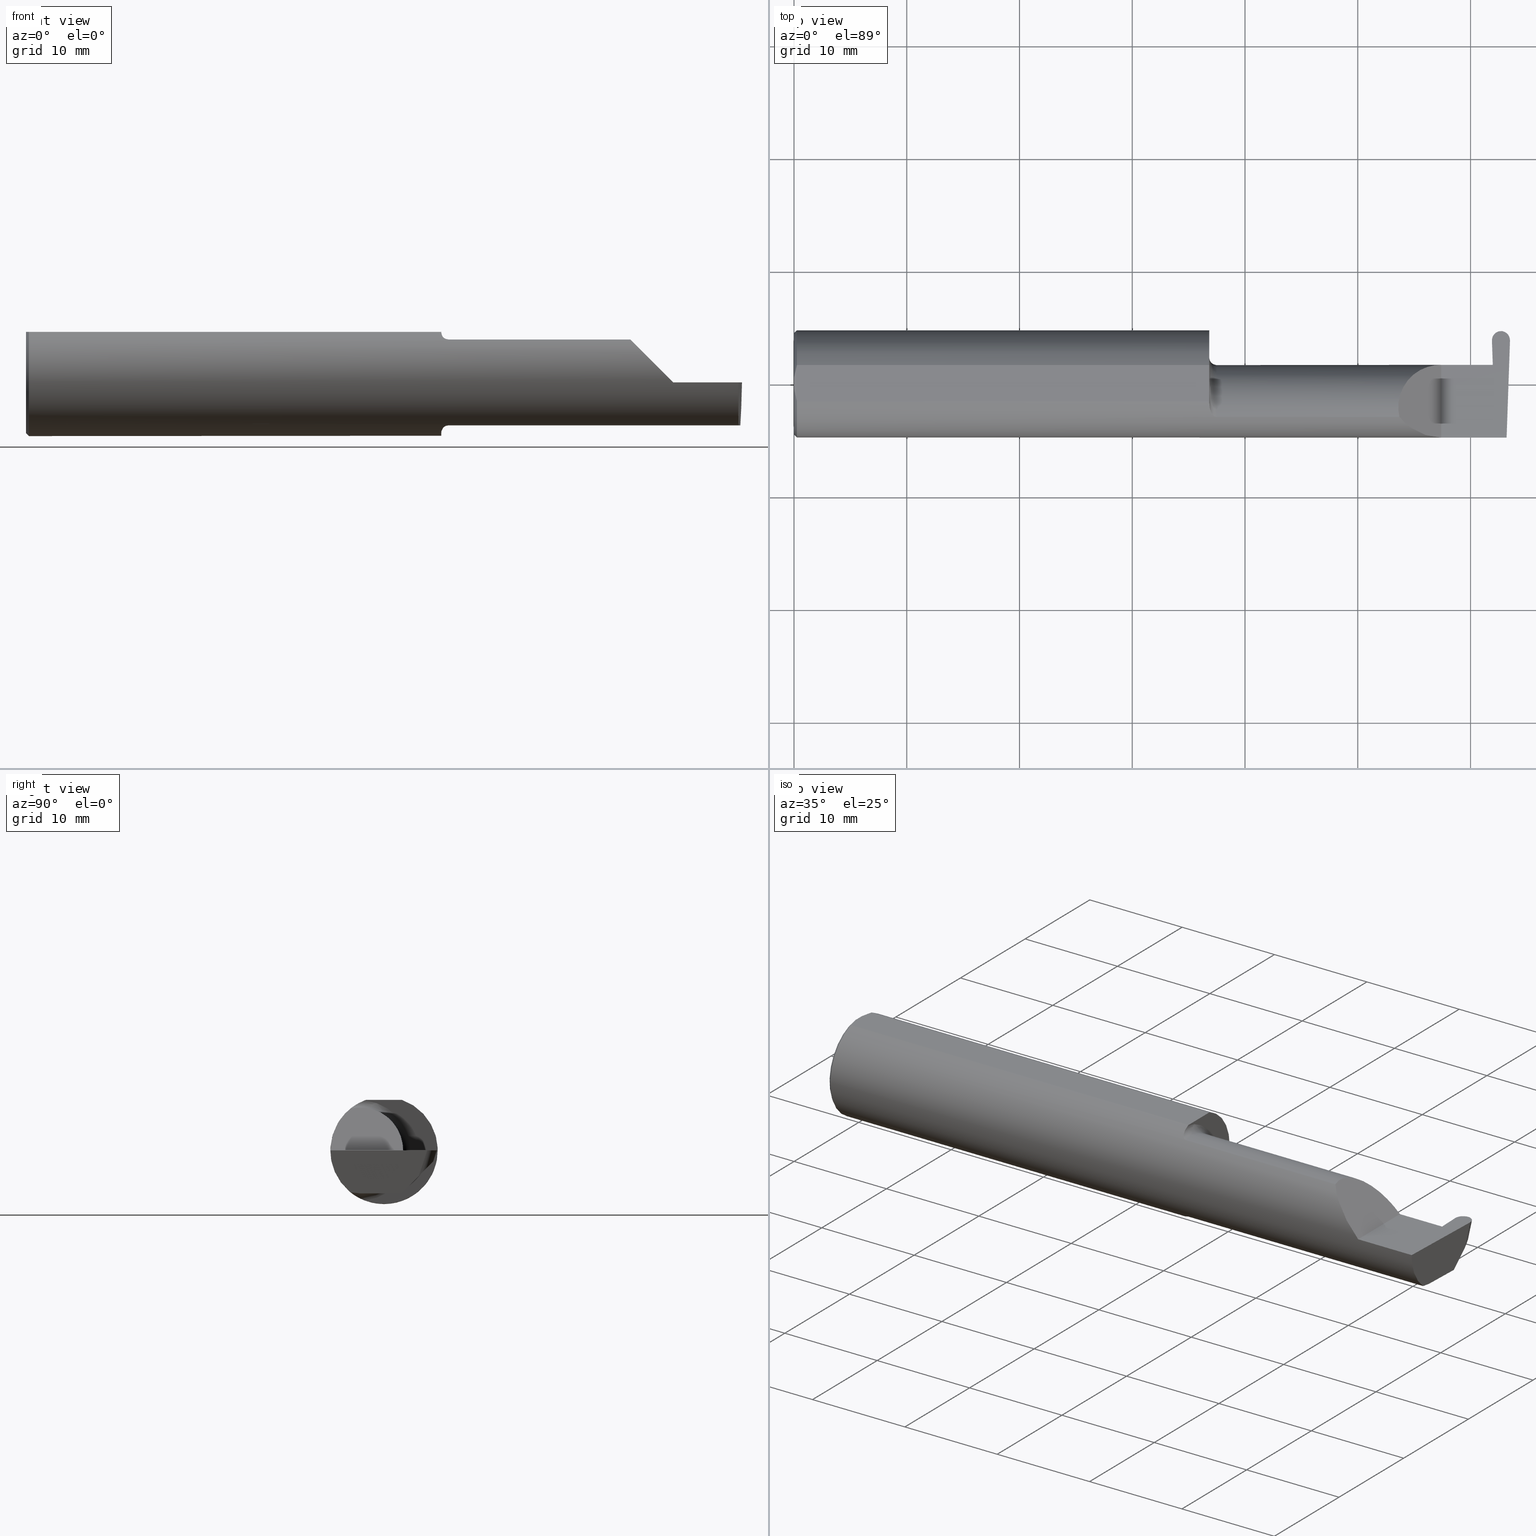
[diagram: canonical four-view strip — front | top / right | iso, engineering-drawing reading convention]
A machine part, canonical four-view strip (front | top / right | iso — engineering-drawing reading convention). The complete STEP part file that produces these views, byte-faithful:
ISO-10303-21;
HEADER;
FILE_DESCRIPTION (( 'STEP AP203' ),
    '1' );
FILE_NAME ('222146-GFR062-16.STEP',
    '2024-06-26T19:08:13',
    ( '' ),
    ( '' ),
    'SwSTEP 2.0',
    'SolidWorks 2024',
    '' );
FILE_SCHEMA (( 'CONFIG_CONTROL_DESIGN' ));
ENDSEC;

DATA;
#1 = EDGE_CURVE ( 'NONE', #405, #377, #662, .T. ) ;
#2 = PLANE ( 'NONE',  #205 ) ;
#3 = CARTESIAN_POINT ( 'NONE',  ( 2.436880131316879083, 0.1519786885938757270, 0.000000000000000000 ) ) ;
#4 = APPROVAL_DATE_TIME ( #260, #464 ) ;
#5 = AXIS2_PLACEMENT_3D ( 'NONE', #609, #555, #159 ) ;
#6 = DIRECTION ( 'NONE',  ( 0.000000000000000000, 0.000000000000000000, -1.000000000000000000 ) ) ;
#7 = DIRECTION ( 'NONE',  ( 0.9998367324388628408, 0.0003153570480505333835, 0.01806679318280454000 ) ) ;
#8 = DATE_AND_TIME ( #333, #388 ) ;
#9 = CARTESIAN_POINT ( 'NONE',  ( 1.450000000000000178, 0.1873499999999997667, 0.1763499999999999235 ) ) ;
#10 = ORIENTED_EDGE ( 'NONE', *, *, #1, .F. ) ;
#11 = LINE ( 'NONE', #439, #113 ) ;
#12 = CIRCLE ( 'NONE', #239, 0.1873499999999999888 ) ;
#13 = DIRECTION ( 'NONE',  ( -0.03701744261649762141, 0.7066221440565398915, 0.7066221440565479961 ) ) ;
#14 = PRODUCT_RELATED_PRODUCT_CATEGORY ( 'detail', '', ( #610 ) ) ;
#15 = CARTESIAN_POINT ( 'NONE',  ( 2.439954497345508511, 0.06655862405284596051, -0.005234924505382013322 ) ) ;
#16 = CARTESIAN_POINT ( 'NONE',  ( 1.450358271039144054, -0.07873626113568082951, -0.1700887912276896341 ) ) ;
#17 = ORIENTED_EDGE ( 'NONE', *, *, #474, .F. ) ;
#18 = DATE_AND_TIME ( #215, #24 ) ;
#19 = EDGE_CURVE ( 'NONE', #351, #484, #11, .T. ) ;
#20 = CARTESIAN_POINT ( 'NONE',  ( 2.436927982915767288, 0.1506083980881225137, 0.000000000000000000 ) ) ;
#21 = EDGE_CURVE ( 'NONE', #432, #138, #550, .T. ) ;
#22 = CYLINDRICAL_SURFACE ( 'NONE', #169, 0.1873499999999999888 ) ;
#23 = ORIENTED_EDGE ( 'NONE', *, *, #69, .T. ) ;
#24 = LOCAL_TIME ( 12, 8, 13.00000000000000000, #271 ) ;
#25 = CIRCLE ( 'NONE', #368, 0.1749999999999999889 ) ;
#26 = DIRECTION ( 'NONE',  ( -1.000000000000000000, -5.190412334829046880E-17, -0.000000000000000000 ) ) ;
#27 = VERTEX_POINT ( 'NONE', #104 ) ;
#28 = CARTESIAN_POINT ( 'NONE',  ( 2.437968007029192030, 0.1506577441815558915, -0.05964530736159392305 ) ) ;
#29 = FACE_OUTER_BOUND ( 'NONE', #256, .T. ) ;
#30 = ORIENTED_EDGE ( 'NONE', *, *, #448, .F. ) ;
#31 = CARTESIAN_POINT ( 'NONE',  ( 2.436927982915767288, 0.1506083980881225137, 0.000000000000000000 ) ) ;
#32 =( BOUNDED_CURVE ( )  B_SPLINE_CURVE ( 3, ( #288, #404, #246, #303 ),
 .UNSPECIFIED., .F., .T. ) 
 B_SPLINE_CURVE_WITH_KNOTS ( ( 4, 4 ),
 ( 0.8789888184544043526, 1.107026853503847663 ),
 .UNSPECIFIED. ) 
 CURVE ( )  GEOMETRIC_REPRESENTATION_ITEM ( )  RATIONAL_B_SPLINE_CURVE ( ( 1.000000000000000000, 0.9956712472009929815, 0.9956712472009929815, 1.000000000000000000 ) ) 
 REPRESENTATION_ITEM ( '' )  );
#33 = CARTESIAN_POINT ( 'NONE',  ( 2.733184360054361939, -0.08335000000000003517, -0.1500000000000000500 ) ) ;
#34 = ORIENTED_EDGE ( 'NONE', *, *, #60, .T. ) ;
#35 = DIRECTION ( 'NONE',  ( 5.190412334829046880E-17, -1.000000000000000000, 0.000000000000000000 ) ) ;
#36 = LINE ( 'NONE', #674, #688 ) ;
#37 = ORIENTED_EDGE ( 'NONE', *, *, #645, .T. ) ;
#38 = FACE_OUTER_BOUND ( 'NONE', #135, .T. ) ;
#39 = CARTESIAN_POINT ( 'NONE',  ( 1.469481469043492083, -0.1163560528186165510, 0.1468472430636323656 ) ) ;
#40 = VERTEX_POINT ( 'NONE', #167 ) ;
#41 = DIRECTION ( 'NONE',  ( 1.000000000000000000, 0.000000000000000000, 0.000000000000000000 ) ) ;
#42 = EDGE_CURVE ( 'NONE', #142, #27, #228, .T. ) ;
#43 = ORIENTED_EDGE ( 'NONE', *, *, #539, .T. ) ;
#44 = CARTESIAN_POINT ( 'NONE',  ( 1.472161949849308371, -0.1172600179964060768, 0.1461167706989261184 ) ) ;
#45 = ORIENTED_EDGE ( 'NONE', *, *, #381, .F. ) ;
#46 = AXIS2_PLACEMENT_3D ( 'NONE', #601, #597, #607 ) ;
#47 = SECURITY_CLASSIFICATION ( '', '', #325 ) ;
#48 = CARTESIAN_POINT ( 'NONE',  ( -0.001039370078739994957, 0.1846500000000000363, 0.000000000000000000 ) ) ;
#49 = ORIENTED_EDGE ( 'NONE', *, *, #372, .F. ) ;
#50 = PERSON_AND_ORGANIZATION ( #416, #402 ) ;
#51 = ADVANCED_FACE ( 'NONE', ( #604 ), #161, .F. ) ;
#52 = DIRECTION ( 'NONE',  ( 1.000000000000000000, 0.000000000000000000, -0.000000000000000000 ) ) ;
#53 = PLANE ( 'NONE',  #5 ) ;
#54 =( NAMED_UNIT ( * ) SI_UNIT ( $, .STERADIAN. ) SOLID_ANGLE_UNIT ( ) );
#55 = CARTESIAN_POINT ( 'NONE',  ( 0.005151108632379722968, -0.04888864921576022843, 0.1763499999999999235 ) ) ;
#56 = CARTESIAN_POINT ( 'NONE',  ( 1.474999999999999867, -0.1172600179964005812, -0.1461167706989303650 ) ) ;
#57 = APPROVAL_PERSON_ORGANIZATION ( #392, #544, #669 ) ;
#58 = ORIENTED_EDGE ( 'NONE', *, *, #703, .T. ) ;
#59 = PLANE ( 'NONE',  #468 ) ;
#60 = EDGE_CURVE ( 'NONE', #432, #79, #393, .T. ) ;
#61 = DIRECTION ( 'NONE',  ( 0.01806679408117650709, 0.000000000000000000, -0.9998367821557817559 ) ) ;
#62 = LINE ( 'NONE', #269, #584 ) ;
#63 = AXIS2_PLACEMENT_3D ( 'NONE', #235, #179, #326 ) ;
#64 = VECTOR ( 'NONE', #290, 39.37007874015747433 ) ;
#65 = DIRECTION ( 'NONE',  ( -0.7071067811865441310, 0.000000000000000000, -0.7071067811865510144 ) ) ;
#66 = PRODUCT_DEFINITION_SHAPE ( 'NONE', 'NONE',  #181 ) ;
#67 = ORIENTED_EDGE ( 'NONE', *, *, #1, .T. ) ;
#68 = CARTESIAN_POINT ( 'NONE',  ( 2.497385173767516786, 0.1218770478189729611, -0.08842600372417716570 ) ) ;
#69 = EDGE_CURVE ( 'NONE', #332, #187, #491, .T. ) ;
#70 = CARTESIAN_POINT ( 'NONE',  ( 2.442617676478078259, -0.08344164721461169720, -0.1500000000000000500 ) ) ;
#71 = EDGE_LOOP ( 'NONE', ( #515, #347, #162, #250 ) ) ;
#72 = DIRECTION ( 'NONE',  ( -0.02739170151059983765, -0.3089010440752013031, -0.9506996579664919178 ) ) ;
#73 = DIRECTION ( 'NONE',  ( 0.000000000000000000, 1.000000000000000000, 0.000000000000000000 ) ) ;
#74 = ORIENTED_EDGE ( 'NONE', *, *, #549, .F. ) ;
#75 = CARTESIAN_POINT ( 'NONE',  ( 2.468139380300150343, 0.1846500000000000363, 0.000000000000000000 ) ) ;
#76 = AXIS2_PLACEMENT_3D ( 'NONE', #486, #397, #6 ) ;
#77 = AXIS2_PLACEMENT_3D ( 'NONE', #480, #378, #375 ) ;
#78 = LINE ( 'NONE', #70, #443 ) ;
#79 = VERTEX_POINT ( 'NONE', #218 ) ;
#80 = CARTESIAN_POINT ( 'NONE',  ( 1.474999999999999867, -0.08335000000000006293, 0.000000000000000000 ) ) ;
#81 = EDGE_CURVE ( 'NONE', #79, #233, #444, .T. ) ;
#82 = CARTESIAN_POINT ( 'NONE',  ( 2.488131149766799943, -0.1873499999999999888, 0.000000000000000000 ) ) ;
#83 = ORIENTED_EDGE ( 'NONE', *, *, #42, .F. ) ;
#84 = DIRECTION ( 'NONE',  ( 0.7071067811865511255, 0.000000000000000000, -0.7071067811865439090 ) ) ;
#85 = CC_DESIGN_DATE_AND_TIME_ASSIGNMENT ( #538, #660, ( #181 ) ) ;
#86 = DIRECTION ( 'NONE',  ( -1.000000000000000000, -5.190412334829047496E-17, -0.000000000000000000 ) ) ;
#87 = ORIENTED_EDGE ( 'NONE', *, *, #21, .F. ) ;
#88 = CARTESIAN_POINT ( 'NONE',  ( 0.000000000000000000, 0.000000000000000000, 0.000000000000000000 ) ) ;
#89 = DIRECTION ( 'NONE',  ( -1.000000000000000000, -0.000000000000000000, -0.000000000000000000 ) ) ;
#90 = VECTOR ( 'NONE', #208, 39.37007874015748143 ) ;
#91 = VECTOR ( 'NONE', #455, 39.37007874015748854 ) ;
#92 = ORIENTED_EDGE ( 'NONE', *, *, #346, .T. ) ;
#93 = EDGE_CURVE ( 'NONE', #40, #289, #173, .T. ) ;
#94 = ADVANCED_FACE ( 'NONE', ( #172 ), #53, .T. ) ;
#95 = CARTESIAN_POINT ( 'NONE',  ( 2.113883229301068312, -0.1172600179964011224, 0.1461167706989300596 ) ) ;
#96 = ORIENTED_EDGE ( 'NONE', *, *, #243, .F. ) ;
#97 = CARTESIAN_POINT ( 'NONE',  ( 1.452945243422983035, -0.09312071749437417223, 0.1626553472577906556 ) ) ;
#98 = ORIENTED_EDGE ( 'NONE', *, *, #421, .T. ) ;
#99 = APPROVAL_ROLE ( '' ) ;
#100 = CARTESIAN_POINT ( 'NONE',  ( 0.000000000000000000, -0.06325108694718235836, 0.1763499999999999235 ) ) ;
#101 = ORIENTED_EDGE ( 'NONE', *, *, #529, .F. ) ;
#102 = AXIS2_PLACEMENT_3D ( 'NONE', #462, #540, #643 ) ;
#103 = PLANE ( 'NONE',  #425 ) ;
#104 = CARTESIAN_POINT ( 'NONE',  ( 2.439475726232482877, 0.1218770478189729889, -0.08842600372417713794 ) ) ;
#105 = CALENDAR_DATE ( 2024, 26, 6 ) ;
#106 = LINE ( 'NONE', #330, #64 ) ;
#107 = CARTESIAN_POINT ( 'NONE',  ( 2.202189699843947857, -0.1873500000000000165, 0.05781030015605082700 ) ) ;
#108 = VERTEX_POINT ( 'NONE', #285 ) ;
#109 = APPROVAL_STATUS ( 'not_yet_approved' ) ;
#110 = DIRECTION ( 'NONE',  ( 0.000000000000000000, -0.7071067811865434649, -0.7071067811865515695 ) ) ;
#111 = CARTESIAN_POINT ( 'NONE',  ( 1.465028532764138580, -0.1137241120808235861, -0.1488947809299403513 ) ) ;
#112 = EDGE_LOOP ( 'NONE', ( #487, #34, #628, #625, #213, #30 ) ) ;
#113 = VECTOR ( 'NONE', #335, 39.37007874015748143 ) ;
#114 =( GEOMETRIC_REPRESENTATION_CONTEXT ( 3 ) GLOBAL_UNCERTAINTY_ASSIGNED_CONTEXT ( ( #621 ) ) GLOBAL_UNIT_ASSIGNED_CONTEXT ( ( #203, #314, #54 ) ) REPRESENTATION_CONTEXT ( 'NONE', 'WORKASPACE' ) );
#115 = EDGE_CURVE ( 'NONE', #423, #401, #299, .T. ) ;
#116 = ORIENTED_EDGE ( 'NONE', *, *, #372, .T. ) ;
#117 = CARTESIAN_POINT ( 'NONE',  ( 0.000000000000000000, 0.000000000000000000, 0.000000000000000000 ) ) ;
#118 = LINE ( 'NONE', #33, #527 ) ;
#119 = ADVANCED_BREP_SHAPE_REPRESENTATION ( '222146-GFR062-16', ( #665, #77 ), #114 ) ;
#120 = ADVANCED_FACE ( 'NONE', ( #557 ), #59, .F. ) ;
#121 =( BOUNDED_CURVE ( )  B_SPLINE_CURVE ( 3, ( #274, #641, #488, #263 ),
 .UNSPECIFIED., .F., .F. ) 
 B_SPLINE_CURVE_WITH_KNOTS ( ( 4, 4 ),
 ( 3.159045946109733549, 4.694935687864693286 ),
 .UNSPECIFIED. ) 
 CURVE ( )  GEOMETRIC_REPRESENTATION_ITEM ( )  RATIONAL_B_SPLINE_CURVE ( ( 1.000000000000000000, 0.8128932002257790446, 0.8128932002257790446, 1.000000000000000000 ) ) 
 REPRESENTATION_ITEM ( '' )  );
#122 = CARTESIAN_POINT ( 'NONE',  ( -0.001039370078739994957, 0.1723030515431495657, -0.03799999999999999906 ) ) ;
#123 = CARTESIAN_POINT ( 'NONE',  ( 2.468430450000000054, 0.1722870660481372052, -0.03801598549501235269 ) ) ;
#124 = ORIENTED_EDGE ( 'NONE', *, *, #143, .F. ) ;
#125 = PLANE ( 'NONE',  #654 ) ;
#126 = CARTESIAN_POINT ( 'NONE',  ( 2.442617647571764028, -0.08334999999999999354, -0.1500000000000000500 ) ) ;
#127 = ORIENTED_EDGE ( 'NONE', *, *, #264, .T. ) ;
#128 = FACE_OUTER_BOUND ( 'NONE', #374, .T. ) ;
#129 = CARTESIAN_POINT ( 'NONE',  ( 0.000000000000000000, 0.01880691362238934988, 0.1763499999999999235 ) ) ;
#130 = EDGE_LOOP ( 'NONE', ( #58, #101, #457, #554 ) ) ;
#131 = CARTESIAN_POINT ( 'NONE',  ( 0.01000000000000013205, 0.000000000000000000, 0.000000000000000000 ) ) ;
#132 = AXIS2_PLACEMENT_3D ( 'NONE', #131, #192, #528 ) ;
#133 = APPLICATION_CONTEXT ( 'configuration controlled 3d designs of mechanical parts and assemblies' ) ;
#134 = PLANE ( 'NONE',  #434 ) ;
#135 = EDGE_LOOP ( 'NONE', ( #10, #316, #23, #608 ) ) ;
#136 = CARTESIAN_POINT ( 'NONE',  ( 2.439475726232482877, 0.1218770478189729889, -0.08842600372417713794 ) ) ;
#137 = DIRECTION ( 'NONE',  ( -0.000000000000000000, 1.000000000000000000, -0.000000000000000000 ) ) ;
#138 = VERTEX_POINT ( 'NONE', #495 ) ;
#139 = DIRECTION ( 'NONE',  ( -1.000000000000000000, -0.000000000000000000, -0.000000000000000000 ) ) ;
#140 = EDGE_CURVE ( 'NONE', #484, #454, #273, .T. ) ;
#141 = CARTESIAN_POINT ( 'NONE',  ( 1.456287624083520083, -0.1021858045380144436, 0.1571187174372875028 ) ) ;
#142 = VERTEX_POINT ( 'NONE', #548 ) ;
#143 = EDGE_CURVE ( 'NONE', #320, #194, #516, .T. ) ;
#144 = DIRECTION ( 'NONE',  ( 0.000000000000000000, 0.000000000000000000, -1.000000000000000000 ) ) ;
#145 = AXIS2_PLACEMENT_3D ( 'NONE', #517, #511, #523 ) ;
#146 = LINE ( 'NONE', #477, #356 ) ;
#147 = VECTOR ( 'NONE', #490, 39.37007874015748854 ) ;
#148 = VECTOR ( 'NONE', #302, 39.37007874015748143 ) ;
#149 = EDGE_LOOP ( 'NONE', ( #678, #475, #689 ) ) ;
#150 = CARTESIAN_POINT ( 'NONE',  ( 2.486891473655445939, 0.1715521506114310035, -0.03875090093171857514 ) ) ;
#151 = ORIENTED_EDGE ( 'NONE', *, *, #223, .T. ) ;
#152 = PERSON_AND_ORGANIZATION ( #416, #402 ) ;
#153 = CARTESIAN_POINT ( 'NONE',  ( 3.749399456654646757E-32, -0.1873499999999999610, 3.061616997868383634E-16 ) ) ;
#154 = ORIENTED_EDGE ( 'NONE', *, *, #623, .F. ) ;
#155 = PERSON_AND_ORGANIZATION_ROLE ( 'design_supplier' ) ;
#156 = EDGE_CURVE ( 'NONE', #283, #289, #576, .T. ) ;
#157 = DIRECTION ( 'NONE',  ( 0.000000000000000000, -0.9510565162951534202, 0.3090169943749482284 ) ) ;
#158 = VECTOR ( 'NONE', #13, 39.37007874015748143 ) ;
#159 = DIRECTION ( 'NONE',  ( -5.190412334829047496E-17, 1.000000000000000000, 0.000000000000000000 ) ) ;
#160 = CARTESIAN_POINT ( 'NONE',  ( 0.001595548104417008695, -0.03385300050298640367, 0.1763499999999999235 ) ) ;
#161 = PLANE ( 'NONE',  #627 ) ;
#162 = ORIENTED_EDGE ( 'NONE', *, *, #19, .T. ) ;
#163 = CARTESIAN_POINT ( 'NONE',  ( 2.468721519699850209, 0.1846500000000000363, 0.000000000000000000 ) ) ;
#164 = EDGE_CURVE ( 'NONE', #138, #194, #25, .T. ) ;
#165 = CARTESIAN_POINT ( 'NONE',  ( 1.472174967710399462, -0.1172600179964005812, -0.1461167706989303927 ) ) ;
#166 = EDGE_CURVE ( 'NONE', #199, #351, #78, .T. ) ;
#167 = CARTESIAN_POINT ( 'NONE',  ( 2.260000000000000231, -0.1873499999999999888, 2.939152317953647352E-17 ) ) ;
#168 = APPROVAL_PERSON_ORGANIZATION ( #698, #364, #367 ) ;
#169 = AXIS2_PLACEMENT_3D ( 'NONE', #676, #672, #236 ) ;
#170 = APPROVAL_PERSON_ORGANIZATION ( #152, #464, #99 ) ;
#171 = APPLICATION_CONTEXT ( 'configuration controlled 3d designs of mechanical parts and assemblies' ) ;
#172 = FACE_OUTER_BOUND ( 'NONE', #535, .T. ) ;
#173 =( BOUNDED_CURVE ( )  B_SPLINE_CURVE ( 3, ( #226, #107, #545, #337 ),
 .UNSPECIFIED., .F., .F. ) 
 B_SPLINE_CURVE_WITH_KNOTS ( ( 4, 4 ),
 ( 4.712388980384688786, 5.606916381293133966 ),
 .UNSPECIFIED. ) 
 CURVE ( )  GEOMETRIC_REPRESENTATION_ITEM ( )  RATIONAL_B_SPLINE_CURVE ( ( 1.000000000000000000, 0.9344226172588806500, 0.9344226172588806500, 1.000000000000000000 ) ) 
 REPRESENTATION_ITEM ( '' )  );
#174 = B_SPLINE_CURVE_WITH_KNOTS ( 'NONE', 3,
 ( #129, #177, #353, #311 ),
 .UNSPECIFIED., .F., .F.,
 ( 4, 4 ),
 ( 0.01188664626022242071, 0.01304646959483746725 ),
 .UNSPECIFIED. ) ;
#175 = CARTESIAN_POINT ( 'NONE',  ( 1.450000000000000178, -0.06851976604679066440, -0.1743704796142198643 ) ) ;
#176 = CARTESIAN_POINT ( 'NONE',  ( 0.000000000000000000, 0.000000000000000000, -0.1773499999999999521 ) ) ;
#177 = CARTESIAN_POINT ( 'NONE',  ( 0.001616639753276021213, 0.03405189565400638246, 0.1763499999999999235 ) ) ;
#178 = ORIENTED_EDGE ( 'NONE', *, *, #284, .F. ) ;
#179 = DIRECTION ( 'NONE',  ( 1.000000000000000000, 0.000000000000000000, 0.000000000000000000 ) ) ;
#180 = CONICAL_SURFACE ( 'NONE', #63, 0.1773499999999999521, 0.7853981633974431720 ) ;
#181 = PRODUCT_DEFINITION ( 'UNKNOWN', '', #494, #234 ) ;
#182 = CARTESIAN_POINT ( 'NONE',  ( 2.488131149766799943, -0.1873499999999999888, 0.000000000000000000 ) ) ;
#183 = ORIENTED_EDGE ( 'NONE', *, *, #243, .T. ) ;
#184 = DIRECTION ( 'NONE',  ( 0.000000000000000000, 0.9510565162951533091, -0.3090169943749480619 ) ) ;
#185 = CARTESIAN_POINT ( 'NONE',  ( 2.468430450000000054, 0.1813675557112593428, -0.01010232474915217019 ) ) ;
#186 = EDGE_CURVE ( 'NONE', #401, #262, #300, .T. ) ;
#187 = VERTEX_POINT ( 'NONE', #616 ) ;
#188 = CARTESIAN_POINT ( 'NONE',  ( 2.440100631637626805, 0.1947434164498489384, -0.01555963509330036791 ) ) ;
#189 = ADVANCED_FACE ( 'NONE', ( #456 ), #518, .F. ) ;
#190 = CARTESIAN_POINT ( 'NONE',  ( 1.452960551809340473, -0.09317341542745746774, -0.1626248379125196930 ) ) ;
#191 = VERTEX_POINT ( 'NONE', #123 ) ;
#192 = DIRECTION ( 'NONE',  ( 1.000000000000000000, 0.000000000000000000, 0.000000000000000000 ) ) ;
#193 = CARTESIAN_POINT ( 'NONE',  ( 1.474999999999999867, -0.1172600179964005812, 0.1461167706989303927 ) ) ;
#194 = VERTEX_POINT ( 'NONE', #175 ) ;
#195 = ADVANCED_FACE ( 'NONE', ( #29 ), #22, .T. ) ;
#196 =( BOUNDED_CURVE ( )  B_SPLINE_CURVE ( 3, ( #449, #521, #396, #182 ),
 .UNSPECIFIED., .F., .T. ) 
 B_SPLINE_CURVE_WITH_KNOTS ( ( 4, 4 ),
 ( 5.852427379562187504, 6.746954780470635349 ),
 .UNSPECIFIED. ) 
 CURVE ( )  GEOMETRIC_REPRESENTATION_ITEM ( )  RATIONAL_B_SPLINE_CURVE ( ( 1.000000000000000000, 0.9344226172588802060, 0.9344226172588802060, 1.000000000000000000 ) ) 
 REPRESENTATION_ITEM ( '' )  );
#197 = CARTESIAN_POINT ( 'NONE',  ( 2.430647848035137226, 0.06655862405286419592, -0.005234924505380427785 ) ) ;
#198 = EDGE_CURVE ( 'NONE', #701, #454, #32, .T. ) ;
#199 = VERTEX_POINT ( 'NONE', #126 ) ;
#200 = LINE ( 'NONE', #467, #148 ) ;
#201 = CARTESIAN_POINT ( 'NONE',  ( 2.468430450000000054, 0.1722870660481372052, -0.03801598549501235269 ) ) ;
#202 = ORIENTED_EDGE ( 'NONE', *, *, #21, .T. ) ;
#203 =( CONVERSION_BASED_UNIT ( 'INCH', #590 ) LENGTH_UNIT ( ) NAMED_UNIT ( #255 ) );
#204 = CARTESIAN_POINT ( 'NONE',  ( 1.450000000000000178, -0.06851976604679066440, 0.1743704796142198643 ) ) ;
#205 = AXIS2_PLACEMENT_3D ( 'NONE', #48, #157, #216 ) ;
#206 = AXIS2_PLACEMENT_3D ( 'NONE', #80, #566, #35 ) ;
#207 = EDGE_LOOP ( 'NONE', ( #659, #297, #83, #684, #67 ) ) ;
#208 = DIRECTION ( 'NONE',  ( 1.000000000000000000, 0.000000000000000000, 0.000000000000000000 ) ) ;
#209 = ORIENTED_EDGE ( 'NONE', *, *, #686, .T. ) ;
#210 = ADVANCED_FACE ( 'NONE', ( #513 ), #134, .F. ) ;
#211 = PERSON_AND_ORGANIZATION ( #416, #402 ) ;
#212 = DIRECTION ( 'NONE',  ( -0.03489949670249307273, -0.9993908270190959842, 0.000000000000000000 ) ) ;
#213 = ORIENTED_EDGE ( 'NONE', *, *, #186, .F. ) ;
#214 = CC_DESIGN_PERSON_AND_ORGANIZATION_ASSIGNMENT ( #321, #598, ( #181 ) ) ;
#215 = CALENDAR_DATE ( 2024, 26, 6 ) ;
#216 = DIRECTION ( 'NONE',  ( 0.000000000000000000, -0.3090169943749481729, -0.9510565162951533091 ) ) ;
#217 = VECTOR ( 'NONE', #86, 39.37007874015748143 ) ;
#218 = CARTESIAN_POINT ( 'NONE',  ( 1.450000000000000178, 0.06325108694718235836, 0.1763499999999999235 ) ) ;
#219 = CIRCLE ( 'NONE', #615, 0.1773499999999999521 ) ;
#220 = CALENDAR_DATE ( 2024, 26, 6 ) ;
#221 = CARTESIAN_POINT ( 'NONE',  ( 2.499980768683121024, 0.1519786885938757826, 0.000000000000000000 ) ) ;
#222 = DIRECTION ( 'NONE',  ( 0.000000000000000000, 0.000000000000000000, -1.000000000000000000 ) ) ;
#223 = EDGE_CURVE ( 'NONE', #194, #79, #12, .T. ) ;
#224 = ORIENTED_EDGE ( 'NONE', *, *, #558, .T. ) ;
#225 = APPROVAL_DATE_TIME ( #8, #544 ) ;
#226 = CARTESIAN_POINT ( 'NONE',  ( 2.260000000000000231, -0.1873499999999999888, 2.939152317953647352E-17 ) ) ;
#227 = VERTEX_POINT ( 'NONE', #82 ) ;
#228 = LINE ( 'NONE', #553, #158 ) ;
#229 = CIRCLE ( 'NONE', #594, 0.1873499999999999888 ) ;
#230 = CARTESIAN_POINT ( 'NONE',  ( 2.439859874782298377, 0.06664999999999998703, -9.645561665750239894E-21 ) ) ;
#231 = DIRECTION ( 'NONE',  ( 1.000000000000000000, 7.488084056613327882E-15, -0.000000000000000000 ) ) ;
#232 = CARTESIAN_POINT ( 'NONE',  ( 0.000000000000000000, 0.01880691362238934988, 0.1763499999999999235 ) ) ;
#233 = VERTEX_POINT ( 'NONE', #452 ) ;
#234 = DESIGN_CONTEXT ( 'detailed design', #171, 'design' ) ;
#235 = CARTESIAN_POINT ( 'NONE',  ( 0.000000000000000000, 0.000000000000000000, 0.000000000000000000 ) ) ;
#236 = DIRECTION ( 'NONE',  ( 0.000000000000000000, 0.000000000000000000, 1.000000000000000000 ) ) ;
#237 = EDGE_LOOP ( 'NONE', ( #267, #354, #370 ) ) ;
#238 = CARTESIAN_POINT ( 'NONE',  ( 2.449969426344554169, 0.1715521506114305317, -0.03875090093171905392 ) ) ;
#239 = AXIS2_PLACEMENT_3D ( 'NONE', #459, #683, #73 ) ;
#240 = VECTOR ( 'NONE', #633, 39.37007874015748143 ) ;
#241 = EDGE_CURVE ( 'NONE', #701, #227, #196, .T. ) ;
#242 = CARTESIAN_POINT ( 'NONE',  ( 2.500000000000000000, -0.2500000000000000555, 0.000000000000000000 ) ) ;
#243 = EDGE_CURVE ( 'NONE', #507, #227, #295, .T. ) ;
#244 = ORIENTED_EDGE ( 'NONE', *, *, #580, .T. ) ;
#245 = CARTESIAN_POINT ( 'NONE',  ( 2.436880131316879083, 0.1519786885938757270, 0.000000000000000000 ) ) ;
#246 = CARTESIAN_POINT ( 'NONE',  ( 2.488744025780163405, -0.09477667630339423055, -0.1499999999999999944 ) ) ;
#247 = ORIENTED_EDGE ( 'NONE', *, *, #338, .F. ) ;
#248 = LINE ( 'NONE', #360, #700 ) ;
#249 = CARTESIAN_POINT ( 'NONE',  ( 1.450353553376444893, -0.07868116735658675642, 0.1701139256562800572 ) ) ;
#250 = ORIENTED_EDGE ( 'NONE', *, *, #140, .T. ) ;
#251 = CARTESIAN_POINT ( 'NONE',  ( 2.468430450000000054, 0.1722870660481372052, -0.03801598549501235269 ) ) ;
#252 = CIRCLE ( 'NONE', #102, 0.1499999999999999944 ) ;
#253 = EDGE_CURVE ( 'NONE', #454, #199, #118, .T. ) ;
#254 = CARTESIAN_POINT ( 'NONE',  ( 2.468139380300150343, 0.1846500000000000363, 0.000000000000000000 ) ) ;
#255 = DIMENSIONAL_EXPONENTS ( 1.000000000000000000, 0.000000000000000000, 0.000000000000000000, 0.000000000000000000, 0.000000000000000000, 0.000000000000000000, 0.000000000000000000 ) ;
#256 = EDGE_LOOP ( 'NONE', ( #178, #673, #525, #639, #708, #359, #87, #304, #461, #43, #583, #562, #124 ) ) ;
#257 = DIRECTION ( 'NONE',  ( 7.486943585142156164E-15, -0.9998476951563912696, 0.01745240643728358451 ) ) ;
#258 = DIRECTION ( 'NONE',  ( 0.000000000000000000, 0.000000000000000000, -1.000000000000000000 ) ) ;
#259 = VERTEX_POINT ( 'NONE', #185 ) ;
#260 = DATE_AND_TIME ( #437, #296 ) ;
#261 = LINE ( 'NONE', #153, #614 ) ;
#262 = VERTEX_POINT ( 'NONE', #232 ) ;
#263 = CARTESIAN_POINT ( 'NONE',  ( 2.439954497345508511, 0.06655862405284596051, -0.005234924505382013322 ) ) ;
#264 = EDGE_CURVE ( 'NONE', #262, #233, #174, .T. ) ;
#265 = CARTESIAN_POINT ( 'NONE',  ( 2.113883229301068312, -0.1172600179964011224, 0.1461167706989300596 ) ) ;
#266 = CIRCLE ( 'NONE', #132, 0.1873499999999999888 ) ;
#267 = ORIENTED_EDGE ( 'NONE', *, *, #186, .T. ) ;
#268 = APPROVAL_STATUS ( 'not_yet_approved' ) ;
#269 = CARTESIAN_POINT ( 'NONE',  ( 2.439859874782298377, 0.06664999999999998703, 0.000000000000000000 ) ) ;
#270 = ORIENTED_EDGE ( 'NONE', *, *, #580, .F. ) ;
#271 = COORDINATED_UNIVERSAL_TIME_OFFSET ( 8, 0, .BEHIND. ) ;
#272 = DIRECTION ( 'NONE',  ( 1.000000000000000000, 0.000000000000000000, 0.000000000000000000 ) ) ;
#273 = LINE ( 'NONE', #504, #147 ) ;
#274 = CARTESIAN_POINT ( 'NONE',  ( 2.442617647571764028, -0.08334999999999999354, -0.1500000000000000500 ) ) ;
#275 = EDGE_CURVE ( 'NONE', #427, #187, #624, .T. ) ;
#276 = CARTESIAN_POINT ( 'NONE',  ( 2.494159529209134529, 0.06030305154315081240, -0.1500000000000000500 ) ) ;
#277 = CARTESIAN_POINT ( 'NONE',  ( 2.430647848035137226, 0.06655862405286419592, -0.005234924505380427785 ) ) ;
#278 = ORIENTED_EDGE ( 'NONE', *, *, #115, .F. ) ;
#279 = CARTESIAN_POINT ( 'NONE',  ( 1.463203859946834440, -0.1120371980050638844, -0.1501764597936559309 ) ) ;
#280 = VERTEX_POINT ( 'NONE', #422 ) ;
#281 = COORDINATED_UNIVERSAL_TIME_OFFSET ( 8, 0, .BEHIND. ) ;
#282 = CARTESIAN_POINT ( 'NONE',  ( 2.430678306684182832, 0.06658908270190942724, -0.003489949670253620836 ) ) ;
#283 = VERTEX_POINT ( 'NONE', #376 ) ;
#284 = EDGE_CURVE ( 'NONE', #701, #320, #365, .T. ) ;
#285 = CARTESIAN_POINT ( 'NONE',  ( 2.497385173767516786, 0.1218770478189729611, -0.08842600372417716570 ) ) ;
#286 = VECTOR ( 'NONE', #137, 39.37007874015748143 ) ;
#287 = CARTESIAN_POINT ( 'NONE',  ( 1.450000000000000178, -0.06325108694718287183, 0.1763499999999999235 ) ) ;
#288 = CARTESIAN_POINT ( 'NONE',  ( 2.488026713523223243, -0.1172600179964006090, -0.1461167706989303650 ) ) ;
#289 = VERTEX_POINT ( 'NONE', #95 ) ;
#290 = DIRECTION ( 'NONE',  ( 0.02739170151059983765, 0.3089010440752013031, 0.9506996579664920288 ) ) ;
#291 = DIRECTION ( 'NONE',  ( -0.7071067811865509034, 0.000000000000000000, 0.7071067811865440200 ) ) ;
#292 = VERTEX_POINT ( 'NONE', #254 ) ;
#293 = CARTESIAN_POINT ( 'NONE',  ( 2.496599625675735457, 0.1068818013178887971, -0.1034212502252615240 ) ) ;
#294 = ADVANCED_FACE ( 'NONE', ( #591 ), #469, .T. ) ;
#295 = LINE ( 'NONE', #680, #342 ) ;
#296 = LOCAL_TIME ( 12, 8, 13.00000000000000000, #546 ) ;
#297 = ORIENTED_EDGE ( 'NONE', *, *, #600, .T. ) ;
#298 = LINE ( 'NONE', #352, #606 ) ;
#299 = CIRCLE ( 'NONE', #322, 0.1773499999999999521 ) ;
#300 = LINE ( 'NONE', #398, #560 ) ;
#301 = ORIENTED_EDGE ( 'NONE', *, *, #703, .F. ) ;
#302 = DIRECTION ( 'NONE',  ( 1.000000000000000000, -0.000000000000000000, -0.000000000000000000 ) ) ;
#303 = CARTESIAN_POINT ( 'NONE',  ( 2.489143054109411057, -0.08335000000000003517, -0.1500000000000000500 ) ) ;
#304 = ORIENTED_EDGE ( 'NONE', *, *, #319, .F. ) ;
#305 = EDGE_CURVE ( 'NONE', #227, #40, #261, .T. ) ;
#306 = CARTESIAN_POINT ( 'NONE',  ( 2.488026713523223243, -0.1172600179964006090, -0.1461167706989303650 ) ) ;
#307 = DIRECTION ( 'NONE',  ( -1.000000000000000000, -5.190412334829047496E-17, -0.000000000000000000 ) ) ;
#308 = ORIENTED_EDGE ( 'NONE', *, *, #140, .F. ) ;
#309 = CARTESIAN_POINT ( 'NONE',  ( 2.436235694025149279, 0.1704329581048291409, 7.809760431069554296E-18 ) ) ;
#310 = AXIS2_PLACEMENT_3D ( 'NONE', #406, #72, #184 ) ;
#311 = CARTESIAN_POINT ( 'NONE',  ( 0.01000000000000013205, 0.06325108694718235836, 0.1763499999999999235 ) ) ;
#312 = ORIENTED_EDGE ( 'NONE', *, *, #156, .T. ) ;
#313 = CC_DESIGN_PERSON_AND_ORGANIZATION_ASSIGNMENT ( #211, #429, ( #494 ) ) ;
#314 =( NAMED_UNIT ( * ) PLANE_ANGLE_UNIT ( ) SI_UNIT ( $, .RADIAN. ) );
#315 = CARTESIAN_POINT ( 'NONE',  ( 2.090221225029926355, -0.01530148607434194015, 0.1697787749700729321 ) ) ;
#316 = ORIENTED_EDGE ( 'NONE', *, *, #371, .T. ) ;
#317 = EDGE_CURVE ( 'NONE', #289, #427, #324, .T. ) ;
#318 = CARTESIAN_POINT ( 'NONE',  ( 1.465004157323697376, -0.1137044537483316020, 0.1489098419202428691 ) ) ;
#319 = EDGE_CURVE ( 'NONE', #565, #432, #473, .T. ) ;
#320 = VERTEX_POINT ( 'NONE', #586 ) ;
#321 = PERSON_AND_ORGANIZATION ( #416, #402 ) ;
#322 = AXIS2_PLACEMENT_3D ( 'NONE', #117, #339, #222 ) ;
#323 = ORIENTED_EDGE ( 'NONE', *, *, #198, .F. ) ;
#324 =( BOUNDED_CURVE ( )  B_SPLINE_CURVE ( 3, ( #265, #315, #630, #692 ),
 .UNSPECIFIED., .F., .T. ) 
 B_SPLINE_CURVE_WITH_KNOTS ( ( 4, 4 ),
 ( 6.055147272130139591, 7.853981633974482790 ),
 .UNSPECIFIED. ) 
 CURVE ( )  GEOMETRIC_REPRESENTATION_ITEM ( )  RATIONAL_B_SPLINE_CURVE ( ( 1.000000000000000000, 0.7480442670255260662, 0.7480442670255260662, 1.000000000000000000 ) ) 
 REPRESENTATION_ITEM ( '' )  );
#325 = SECURITY_CLASSIFICATION_LEVEL ( 'unclassified' ) ;
#326 = DIRECTION ( 'NONE',  ( 0.000000000000000000, 0.000000000000000000, -1.000000000000000000 ) ) ;
#327 = DIRECTION ( 'NONE',  ( -0.03489949670249345437, 0.9993908270190959842, 0.000000000000000000 ) ) ;
#328 = PERSON_AND_ORGANIZATION ( #416, #402 ) ;
#329 = ADVANCED_FACE ( 'NONE', ( #534 ), #582, .T. ) ;
#330 = CARTESIAN_POINT ( 'NONE',  ( 2.499944547461123268, 0.1507395558974708449, 0.0004036622306032633173 ) ) ;
#331 = CARTESIAN_POINT ( 'NONE',  ( 2.430708765333227994, 0.06661954135095468632, -0.001744974835126810201 ) ) ;
#332 = VERTEX_POINT ( 'NONE', #197 ) ;
#333 = CALENDAR_DATE ( 2024, 26, 6 ) ;
#334 = TOROIDAL_SURFACE ( 'NONE', #206, 0.1749999999999999889, 0.02499999999999993547 ) ;
#335 = DIRECTION ( 'NONE',  ( 1.000000000000000000, -0.000000000000000000, -0.000000000000000000 ) ) ;
#336 = ORIENTED_EDGE ( 'NONE', *, *, #647, .F. ) ;
#337 = CARTESIAN_POINT ( 'NONE',  ( 2.113883229301068312, -0.1172600179964011224, 0.1461167706989300596 ) ) ;
#338 = EDGE_CURVE ( 'NONE', #283, #320, #252, .T. ) ;
#339 = DIRECTION ( 'NONE',  ( -1.000000000000000000, -0.000000000000000000, -0.000000000000000000 ) ) ;
#340 = LINE ( 'NONE', #505, #573 ) ;
#341 = DIRECTION ( 'NONE',  ( -1.000000000000000000, -0.000000000000000000, -0.000000000000000000 ) ) ;
#342 = VECTOR ( 'NONE', #506, 39.37007874015747433 ) ;
#343 = ORIENTED_EDGE ( 'NONE', *, *, #400, .F. ) ;
#344 = DIRECTION ( 'NONE',  ( 0.000000000000000000, -0.7071067811865515695, 0.7071067811865434649 ) ) ;
#345 = CARTESIAN_POINT ( 'NONE',  ( 1.450000000000000178, -0.06851976604679066440, -0.1743704796142198643 ) ) ;
#346 = EDGE_CURVE ( 'NONE', #138, #283, #693, .T. ) ;
#347 = ORIENTED_EDGE ( 'NONE', *, *, #166, .T. ) ;
#348 = CARTESIAN_POINT ( 'NONE',  ( 0.000000000000000000, 0.000000000000000000, 0.000000000000000000 ) ) ;
#349 = EDGE_CURVE ( 'NONE', #565, #500, #229, .T. ) ;
#350 = DIRECTION ( 'NONE',  ( 1.000000000000000000, 5.190412334829047496E-17, 0.000000000000000000 ) ) ;
#351 = VERTEX_POINT ( 'NONE', #578 ) ;
#352 = CARTESIAN_POINT ( 'NONE',  ( 2.436916352538876840, 0.1507395558974708449, 0.0004036622306032524210 ) ) ;
#353 = CARTESIAN_POINT ( 'NONE',  ( 0.005155213631852488369, 0.04890080824240059659, 0.1763499999999999235 ) ) ;
#354 = ORIENTED_EDGE ( 'NONE', *, *, #549, .T. ) ;
#355 = DIRECTION ( 'NONE',  ( -0.03701744261649735079, -0.7066221440565398915, -0.7066221440565479961 ) ) ;
#356 = VECTOR ( 'NONE', #307, 39.37007874015748143 ) ;
#357 = AXIS2_PLACEMENT_3D ( 'NONE', #409, #257, #471 ) ;
#358 = CARTESIAN_POINT ( 'NONE',  ( 1.451843912362378308, -0.08846956905169092722, -0.1652353808078972086 ) ) ;
#359 = ORIENTED_EDGE ( 'NONE', *, *, #346, .F. ) ;
#360 = CARTESIAN_POINT ( 'NONE',  ( 0.000000000000000000, 0.000000000000000000, -0.1773499999999999521 ) ) ;
#361 = CARTESIAN_POINT ( 'NONE',  ( 1.458475602106621638, -0.1064978748893405519, 0.1542035505680384444 ) ) ;
#362 = ORIENTED_EDGE ( 'NONE', *, *, #570, .T. ) ;
#363 = CARTESIAN_POINT ( 'NONE',  ( 2.468430450000000054, 0.1722870660481372052, -0.03801598549501235269 ) ) ;
#364 = APPROVAL ( #268, 'UNSPECIFIED' ) ;
#365 = LINE ( 'NONE', #648, #217 ) ;
#366 = ORIENTED_EDGE ( 'NONE', *, *, #570, .F. ) ;
#367 = APPROVAL_ROLE ( '' ) ;
#368 = AXIS2_PLACEMENT_3D ( 'NONE', #410, #26, #619 ) ;
#369 = CARTESIAN_POINT ( 'NONE',  ( 1.450000000000000178, -0.08335000000000004905, 0.000000000000000000 ) ) ;
#370 = ORIENTED_EDGE ( 'NONE', *, *, #115, .T. ) ;
#371 = EDGE_CURVE ( 'NONE', #405, #332, #146, .T. ) ;
#372 = EDGE_CURVE ( 'NONE', #40, #427, #696, .T. ) ;
#373 = CARTESIAN_POINT ( 'NONE',  ( 2.468392368909974710, 0.1518387226096841736, 0.0009534130333776854498 ) ) ;
#374 = EDGE_LOOP ( 'NONE', ( #92, #408, #496, #681 ) ) ;
#375 = DIRECTION ( 'NONE',  ( 1.000000000000000000, 0.000000000000000000, 0.000000000000000000 ) ) ;
#376 = CARTESIAN_POINT ( 'NONE',  ( 1.474999999999999867, -0.1172600179964005812, 0.1461167706989303927 ) ) ;
#377 = VERTEX_POINT ( 'NONE', #426 ) ;
#378 = DIRECTION ( 'NONE',  ( 0.000000000000000000, 0.000000000000000000, 1.000000000000000000 ) ) ;
#379 = FACE_OUTER_BOUND ( 'NONE', #149, .T. ) ;
#380 = EDGE_LOOP ( 'NONE', ( #620, #247, #312, #387, #592, #587, #568, #301, #428, #323 ) ) ;
#381 = EDGE_CURVE ( 'NONE', #191, #108, #442, .T. ) ;
#382 = PERSON_AND_ORGANIZATION_ROLE ( 'design_owner' ) ;
#383 = DIRECTION ( 'NONE',  ( -0.02739170151059995562, 0.3089010440752013587, 0.9506996579664918068 ) ) ;
#384 = CARTESIAN_POINT ( 'NONE',  ( 0.000000000000000000, 0.06325108694718235836, 0.1763499999999999235 ) ) ;
#385 = CARTESIAN_POINT ( 'NONE',  ( 2.499932917084233264, 0.1506083980881225415, 0.000000000000000000 ) ) ;
#386 = CARTESIAN_POINT ( 'NONE',  ( 1.469511795768554840, -0.1163687266324234804, -0.1468371510166788796 ) ) ;
#387 = ORIENTED_EDGE ( 'NONE', *, *, #317, .T. ) ;
#388 = LOCAL_TIME ( 12, 8, 13.00000000000000000, #281 ) ;
#389 = CONICAL_SURFACE ( 'NONE', #76, 0.1773499999999999521, 0.7853981633974431720 ) ;
#390 = DIRECTION ( 'NONE',  ( -5.190412334829047496E-17, 1.000000000000000000, 0.000000000000000000 ) ) ;
#391 = ORIENTED_EDGE ( 'NONE', *, *, #42, .T. ) ;
#392 = PERSON_AND_ORGANIZATION ( #416, #402 ) ;
#393 = LINE ( 'NONE', #9, #453 ) ;
#394 = SHAPE_DEFINITION_REPRESENTATION ( #66, #119 ) ;
#395 =( BOUNDED_CURVE ( )  B_SPLINE_CURVE ( 3, ( #136, #28, #238, #251 ),
 .UNSPECIFIED., .F., .T. ) 
 B_SPLINE_CURVE_WITH_KNOTS ( ( 4, 4 ),
 ( 1.556955361882043087, 3.130020595955853135 ),
 .UNSPECIFIED. ) 
 CURVE ( )  GEOMETRIC_REPRESENTATION_ITEM ( )  RATIONAL_B_SPLINE_CURVE ( ( 1.000000000000000000, 0.8042027643195523989, 0.8042027643195523989, 1.000000000000000000 ) ) 
 REPRESENTATION_ITEM ( '' )  );
#396 = CARTESIAN_POINT ( 'NONE',  ( 2.487121452143546296, -0.1873500000000000165, -0.05781030015605123640 ) ) ;
#397 = DIRECTION ( 'NONE',  ( 1.000000000000000000, 0.000000000000000000, 0.000000000000000000 ) ) ;
#398 = CARTESIAN_POINT ( 'NONE',  ( 0.000000000000000000, 0.1873499999999998500, 0.1763499999999999235 ) ) ;
#399 = VECTOR ( 'NONE', #687, 39.37007874015748143 ) ;
#400 = EDGE_CURVE ( 'NONE', #259, #292, #36, .T. ) ;
#401 = VERTEX_POINT ( 'NONE', #559 ) ;
#402 = ORGANIZATION ( 'UNSPECIFIED', 'UNSPECIFIED', '' ) ;
#403 = DIRECTION ( 'NONE',  ( 0.000000000000000000, 0.000000000000000000, 1.000000000000000000 ) ) ;
#404 = CARTESIAN_POINT ( 'NONE',  ( 2.488370294460939824, -0.1061291577212409298, -0.1486999626928446339 ) ) ;
#405 = VERTEX_POINT ( 'NONE', #15 ) ;
#406 = CARTESIAN_POINT ( 'NONE',  ( 2.466868444985754305, 0.1337942696928608455, -0.05458170264606325428 ) ) ;
#407 = CARTESIAN_POINT ( 'NONE',  ( 1.456304331342287872, -0.1022198306720690925, -0.1570962426853818594 ) ) ;
#408 = ORIENTED_EDGE ( 'NONE', *, *, #338, .T. ) ;
#409 = CARTESIAN_POINT ( 'NONE',  ( 2.439859874782298377, 0.06664999999999998703, 0.000000000000000000 ) ) ;
#410 = CARTESIAN_POINT ( 'NONE',  ( 1.450000000000000178, -0.08335000000000004905, 0.000000000000000000 ) ) ;
#411 = EDGE_LOOP ( 'NONE', ( #391, #244, #537, #362, #617, #574 ) ) ;
#412 = ADVANCED_FACE ( 'NONE', ( #599 ), #180, .T. ) ;
#413 = FACE_OUTER_BOUND ( 'NONE', #435, .T. ) ;
#414 = CARTESIAN_POINT ( 'NONE',  ( 0.01000000000000013205, 0.000000000000000000, 0.000000000000000000 ) ) ;
#415 = ORIENTED_EDGE ( 'NONE', *, *, #275, .F. ) ;
#416 = PERSON ( 'UNSPECIFIED', 'UNSPECIFIED', 'UNSPECIFIED', ('UNSPECIFIED'), ('UNSPECIFIED'), ('UNSPECIFIED') ) ;
#417 = DIRECTION ( 'NONE',  ( 0.02739170151059995562, -0.3089010440752013031, -0.9506996579664920288 ) ) ;
#418 = CARTESIAN_POINT ( 'NONE',  ( 2.498892892970808521, 0.1506577441815562524, -0.05964530736159356916 ) ) ;
#419 = ORIENTED_EDGE ( 'NONE', *, *, #164, .T. ) ;
#420 = CARTESIAN_POINT ( 'NONE',  ( 2.466868444985754305, 0.1637525499561582054, -0.06431573796887413152 ) ) ;
#421 = EDGE_CURVE ( 'NONE', #108, #507, #106, .T. ) ;
#422 = CARTESIAN_POINT ( 'NONE',  ( 2.468721519699850209, 0.1846500000000000363, 0.000000000000000000 ) ) ;
#423 = VERTEX_POINT ( 'NONE', #176 ) ;
#424 = ADVANCED_FACE ( 'NONE', ( #543 ), #596, .F. ) ;
#425 = AXIS2_PLACEMENT_3D ( 'NONE', #221, #508, #212 ) ;
#426 = CARTESIAN_POINT ( 'NONE',  ( 2.439859874782298377, 0.06664999999999998703, 0.000000000000000000 ) ) ;
#427 = VERTEX_POINT ( 'NONE', #661 ) ;
#428 = ORIENTED_EDGE ( 'NONE', *, *, #253, .F. ) ;
#429 = PERSON_AND_ORGANIZATION_ROLE ( 'creator' ) ;
#430 = ADVANCED_FACE ( 'NONE', ( #618 ), #103, .F. ) ;
#431 = FACE_OUTER_BOUND ( 'NONE', #237, .T. ) ;
#432 = VERTEX_POINT ( 'NONE', #287 ) ;
#433 = PERSON_AND_ORGANIZATION_ROLE ( 'classification_officer' ) ;
#434 = AXIS2_PLACEMENT_3D ( 'NONE', #242, #567, #668 ) ;
#435 = EDGE_LOOP ( 'NONE', ( #532, #45, #502, #336, #17 ) ) ;
#436 = ORIENTED_EDGE ( 'NONE', *, *, #558, .F. ) ;
#437 = CALENDAR_DATE ( 2024, 26, 6 ) ;
#438 = CARTESIAN_POINT ( 'NONE',  ( 0.01000000000000013205, 0.000000000000000000, -0.1873499999999999888 ) ) ;
#439 = CARTESIAN_POINT ( 'NONE',  ( -0.001039370078739994957, 0.06030305154315079852, -0.1500000000000000500 ) ) ;
#440 = ORIENTED_EDGE ( 'NONE', *, *, #539, .F. ) ;
#441 = ADVANCED_FACE ( 'NONE', ( #431 ), #125, .F. ) ;
#442 =( BOUNDED_CURVE ( )  B_SPLINE_CURVE ( 3, ( #201, #150, #418, #68 ),
 .UNSPECIFIED., .F., .T. ) 
 B_SPLINE_CURVE_WITH_KNOTS ( ( 4, 4 ),
 ( 3.153164711223715777, 4.726229945297543367 ),
 .UNSPECIFIED. ) 
 CURVE ( )  GEOMETRIC_REPRESENTATION_ITEM ( )  RATIONAL_B_SPLINE_CURVE ( ( 1.000000000000000000, 0.8042027643195482911, 0.8042027643195482911, 1.000000000000000000 ) ) 
 REPRESENTATION_ITEM ( '' )  );
#443 = VECTOR ( 'NONE', #561, 39.37007874015748143 ) ;
#444 = LINE ( 'NONE', #384, #605 ) ;
#445 = LOCAL_TIME ( 12, 8, 13.00000000000000000, #533 ) ;
#446 = DIRECTION ( 'NONE',  ( -0.000000000000000000, 1.000000000000000000, -0.000000000000000000 ) ) ;
#447 = CARTESIAN_POINT ( 'NONE',  ( 0.01000000000000013205, -0.06325108694718235836, 0.1763499999999999235 ) ) ;
#448 = EDGE_CURVE ( 'NONE', #565, #401, #530, .T. ) ;
#449 = CARTESIAN_POINT ( 'NONE',  ( 2.488026713523223243, -0.1172600179964006090, -0.1461167706989303650 ) ) ;
#450 = EDGE_LOOP ( 'NONE', ( #436, #343, #37, #270, #541 ) ) ;
#451 = CARTESIAN_POINT ( 'NONE',  ( 2.733184360054361939, -0.08335000000000003517, -0.1500000000000000500 ) ) ;
#452 = CARTESIAN_POINT ( 'NONE',  ( 0.01000000000000013205, 0.06325108694718235836, 0.1763499999999999235 ) ) ;
#453 = VECTOR ( 'NONE', #390, 39.37007874015748143 ) ;
#454 = VERTEX_POINT ( 'NONE', #489 ) ;
#455 = DIRECTION ( 'NONE',  ( -0.02739170151059983765, -0.3089010440752013587, -0.9506996579664918068 ) ) ;
#456 = FACE_OUTER_BOUND ( 'NONE', #644, .T. ) ;
#457 = ORIENTED_EDGE ( 'NONE', *, *, #677, .F. ) ;
#458 = CARTESIAN_POINT ( 'NONE',  ( 2.468430450000000054, 0.1753165746847618611, -0.02871425790364445785 ) ) ;
#459 = CARTESIAN_POINT ( 'NONE',  ( 1.450000000000000178, 0.000000000000000000, 0.000000000000000000 ) ) ;
#460 = ADVANCED_FACE ( 'NONE', ( #379 ), #2, .F. ) ;
#461 = ORIENTED_EDGE ( 'NONE', *, *, #349, .T. ) ;
#462 = CARTESIAN_POINT ( 'NONE',  ( 1.474999999999999867, -0.08335000000000004905, 0.000000000000000000 ) ) ;
#463 = ORIENTED_EDGE ( 'NONE', *, *, #472, .F. ) ;
#464 = APPROVAL ( #593, 'UNSPECIFIED' ) ;
#465 =( BOUNDED_CURVE ( )  B_SPLINE_CURVE ( 3, ( #636, #629, #458, #363 ),
 .UNSPECIFIED., .F., .F. ) 
 B_SPLINE_CURVE_WITH_KNOTS ( ( 4, 4 ),
 ( 4.712388980384702108, 4.737916900929588948 ),
 .UNSPECIFIED. ) 
 CURVE ( )  GEOMETRIC_REPRESENTATION_ITEM ( )  RATIONAL_B_SPLINE_CURVE ( ( 1.000000000000000000, 0.9999456945100086980, 0.9999456945100086980, 1.000000000000000000 ) ) 
 REPRESENTATION_ITEM ( '' )  );
#466 = AXIS2_PLACEMENT_3D ( 'NONE', #451, #403, #52 ) ;
#467 = CARTESIAN_POINT ( 'NONE',  ( -0.001039370078739994957, 0.1846500000000000363, 0.000000000000000000 ) ) ;
#468 = AXIS2_PLACEMENT_3D ( 'NONE', #652, #7, #61 ) ;
#469 = CYLINDRICAL_SURFACE ( 'NONE', #640, 0.1499999999999999944 ) ;
#470 = VERTEX_POINT ( 'NONE', #20 ) ;
#471 = DIRECTION ( 'NONE',  ( 0.000000000000000000, -0.01745240643728358451, -0.9998476951563912696 ) ) ;
#472 = EDGE_CURVE ( 'NONE', #187, #377, #62, .T. ) ;
#473 = LINE ( 'NONE', #100, #90 ) ;
#474 = EDGE_CURVE ( 'NONE', #507, #280, #497, .T. ) ;
#475 = ORIENTED_EDGE ( 'NONE', *, *, #400, .T. ) ;
#476 = MECHANICAL_CONTEXT ( 'NONE', #133, 'mechanical' ) ;
#477 = CARTESIAN_POINT ( 'NONE',  ( 1.449999999999999067, 0.06655862405284956873, -0.005234924505797897663 ) ) ;
#478 = EDGE_LOOP ( 'NONE', ( #697, #224, #154, #463, #415, #49, #632, #96, #705 ) ) ;
#479 = CC_DESIGN_APPROVAL ( #364, ( #494 ) ) ;
#480 = CARTESIAN_POINT ( 'NONE',  ( 0.000000000000000000, 0.000000000000000000, 0.000000000000000000 ) ) ;
#481 = VECTOR ( 'NONE', #657, 39.37007874015747433 ) ;
#482 = VECTOR ( 'NONE', #520, 39.37007874015748143 ) ;
#483 = DIRECTION ( 'NONE',  ( -1.000000000000000000, -5.190412334829046880E-17, -0.000000000000000000 ) ) ;
#484 = VERTEX_POINT ( 'NONE', #276 ) ;
#485 = COORDINATED_UNIVERSAL_TIME_OFFSET ( 8, 0, .BEHIND. ) ;
#486 = CARTESIAN_POINT ( 'NONE',  ( 0.000000000000000000, 0.000000000000000000, 0.000000000000000000 ) ) ;
#487 = ORIENTED_EDGE ( 'NONE', *, *, #319, .T. ) ;
#488 = CARTESIAN_POINT ( 'NONE',  ( 2.441498648347320888, 0.06357628547474596103, -0.09063792740366179157 ) ) ;
#489 = CARTESIAN_POINT ( 'NONE',  ( 2.489143054109411057, -0.08335000000000003517, -0.1500000000000000500 ) ) ;
#490 = DIRECTION ( 'NONE',  ( -0.03489949670249307273, -0.9993908270190959842, 0.000000000000000000 ) ) ;
#491 = B_SPLINE_CURVE_WITH_KNOTS ( 'NONE', 3,
 ( #277, #282, #331, #501 ),
 .UNSPECIFIED., .F., .F.,
 ( 4, 4 ),
 ( 0.000000000000000000, 1.000000000000000000 ),
 .UNSPECIFIED. ) ;
#492 = CC_DESIGN_PERSON_AND_ORGANIZATION_ASSIGNMENT ( #650, #155, ( #494 ) ) ;
#493 = FACE_OUTER_BOUND ( 'NONE', #649, .T. ) ;
#494 = PRODUCT_DEFINITION_FORMATION_WITH_SPECIFIED_SOURCE ( 'ANY', '', #610, .NOT_KNOWN. ) ;
#495 = CARTESIAN_POINT ( 'NONE',  ( 1.450000000000000178, -0.06851976604679066440, 0.1743704796142198643 ) ) ;
#496 = ORIENTED_EDGE ( 'NONE', *, *, #143, .T. ) ;
#497 =( BOUNDED_CURVE ( )  B_SPLINE_CURVE ( 3, ( #707, #656, #547, #163 ),
 .UNSPECIFIED., .F., .T. ) 
 B_SPLINE_CURVE_WITH_KNOTS ( ( 4, 4 ),
 ( 1.627103621474502049, 3.225696776093215590 ),
 .UNSPECIFIED. ) 
 CURVE ( )  GEOMETRIC_REPRESENTATION_ITEM ( )  RATIONAL_B_SPLINE_CURVE ( ( 1.000000000000000000, 0.7981407609938108161, 0.7981407609938108161, 1.000000000000000000 ) ) 
 REPRESENTATION_ITEM ( '' )  );
#498 = DIRECTION ( 'NONE',  ( 0.9992386149554828290, 0.03489418134010615485, 0.01745240643728358798 ) ) ;
#499 = ADVANCED_FACE ( 'NONE', ( #493 ), #389, .T. ) ;
#500 = VERTEX_POINT ( 'NONE', #438 ) ;
#501 = CARTESIAN_POINT ( 'NONE',  ( 2.430739223982273156, 0.06664999999999991764, 0.000000000000000000 ) ) ;
#502 = ORIENTED_EDGE ( 'NONE', *, *, #645, .F. ) ;
#503 = CLOSED_SHELL ( 'NONE', ( #412, #551, #195, #189, #210, #602, #441, #499, #655, #294, #94, #424, #460, #526, #51, #430, #120, #658, #329 ) ) ;
#504 = CARTESIAN_POINT ( 'NONE',  ( 2.489440290287315172, -0.07483826952468645988, -0.1500000000000000500 ) ) ;
#505 = CARTESIAN_POINT ( 'NONE',  ( 2.439859874782298377, 0.06664999999999998703, -9.645561665750239894E-21 ) ) ;
#506 = DIRECTION ( 'NONE',  ( -0.03489949670249308661, -0.9993908270190960952, 0.000000000000000000 ) ) ;
#507 = VERTEX_POINT ( 'NONE', #385 ) ;
#508 = DIRECTION ( 'NONE',  ( -0.9992386149554828290, 0.03489418134010577321, 0.01745240643728358798 ) ) ;
#509 = CARTESIAN_POINT ( 'NONE',  ( 1.955930449999999876, -0.1172600179964006506, 0.1461167706989303650 ) ) ;
#510 = ORIENTED_EDGE ( 'NONE', *, *, #317, .F. ) ;
#511 = DIRECTION ( 'NONE',  ( 0.000000000000000000, 0.000000000000000000, 1.000000000000000000 ) ) ;
#512 = CC_DESIGN_APPROVAL ( #544, ( #47 ) ) ;
#513 = FACE_OUTER_BOUND ( 'NONE', #478, .T. ) ;
#514 = AXIS2_PLACEMENT_3D ( 'NONE', #373, #634, #588 ) ;
#515 = ORIENTED_EDGE ( 'NONE', *, *, #253, .T. ) ;
#516 = B_SPLINE_CURVE_WITH_KNOTS ( 'NONE', 3,
 ( #56, #165, #386, #111, #279, #664, #407, #190, #358, #16, #572, #345 ),
 .UNSPECIFIED., .F., .F.,
 ( 4, 2, 2, 2, 2, 4 ),
 ( 1.967976973658592312E-07, 0.0002120314145722273266, 0.0004238660314470887587, 0.0008475352651967989377, 0.001271204498946509279, 0.001694873732696219621 ),
 .UNSPECIFIED. ) ;
#517 = CARTESIAN_POINT ( 'NONE',  ( 2.876828993045917215, 0.1873499999999998500, 0.1763499999999999235 ) ) ;
#518 = PLANE ( 'NONE',  #666 ) ;
#519 = ORIENTED_EDGE ( 'NONE', *, *, #93, .F. ) ;
#520 = DIRECTION ( 'NONE',  ( -0.01299916717458447085, 0.7070470357949164564, 0.7070470357949245610 ) ) ;
#521 = CARTESIAN_POINT ( 'NONE',  ( 2.487084196965268390, -0.1623470442677540926, -0.1099340280425339100 ) ) ;
#522 = EDGE_LOOP ( 'NONE', ( #278, #209, #635, #577 ) ) ;
#523 = DIRECTION ( 'NONE',  ( 1.000000000000000000, 0.000000000000000000, -0.000000000000000000 ) ) ;
#524 = CARTESIAN_POINT ( 'NONE',  ( 1.451829077486400443, -0.08839624499054646312, 0.1652742498708037744 ) ) ;
#525 = ORIENTED_EDGE ( 'NONE', *, *, #305, .T. ) ;
#526 = ADVANCED_FACE ( 'NONE', ( #603 ), #612, .F. ) ;
#527 = VECTOR ( 'NONE', #341, 39.37007874015748143 ) ;
#528 = DIRECTION ( 'NONE',  ( 0.000000000000000000, 0.000000000000000000, -1.000000000000000000 ) ) ;
#529 = EDGE_CURVE ( 'NONE', #142, #405, #340, .T. ) ;
#530 = B_SPLINE_CURVE_WITH_KNOTS ( 'NONE', 3,
 ( #447, #55, #160, #671 ),
 .UNSPECIFIED., .F., .F.,
 ( 4, 4 ),
 ( 0.009771445421851331775, 0.01092787937989104369 ),
 .UNSPECIFIED. ) ;
#531 = CARTESIAN_POINT ( 'NONE',  ( 1.463163223656403167, -0.1119926267047277324, 0.1502091925606063028 ) ) ;
#532 = ORIENTED_EDGE ( 'NONE', *, *, #421, .F. ) ;
#533 = COORDINATED_UNIVERSAL_TIME_OFFSET ( 8, 0, .BEHIND. ) ;
#534 = FACE_OUTER_BOUND ( 'NONE', #450, .T. ) ;
#535 = EDGE_LOOP ( 'NONE', ( #151, #589, #202, #419 ) ) ;
#536 = CARTESIAN_POINT ( 'NONE',  ( 1.450000000000000178, 0.06664999999999995928, 1.285879139104721225E-16 ) ) ;
#537 = ORIENTED_EDGE ( 'NONE', *, *, #381, .T. ) ;
#538 = DATE_AND_TIME ( #220, #445 ) ;
#539 = EDGE_CURVE ( 'NONE', #500, #233, #266, .T. ) ;
#540 = DIRECTION ( 'NONE',  ( -1.000000000000000000, -5.190412334829046880E-17, -0.000000000000000000 ) ) ;
#541 = ORIENTED_EDGE ( 'NONE', *, *, #600, .F. ) ;
#542 = APPLICATION_PROTOCOL_DEFINITION ( 'international standard', 'config_control_design', 1994, #171 ) ;
#543 = FACE_OUTER_BOUND ( 'NONE', #71, .T. ) ;
#544 = APPROVAL ( #109, 'UNSPECIFIED' ) ;
#545 = CARTESIAN_POINT ( 'NONE',  ( 2.150065971957465294, -0.1623470442677543146, 0.1099340280425333688 ) ) ;
#546 = COORDINATED_UNIVERSAL_TIME_OFFSET ( 8, 0, .BEHIND. ) ;
#547 = CARTESIAN_POINT ( 'NONE',  ( 2.487590162989234077, 0.1846499999999998698, -1.088211360020845268E-17 ) ) ;
#548 = CARTESIAN_POINT ( 'NONE',  ( 2.442502567817287584, 0.06409798100083120842, -0.1462050705423010022 ) ) ;
#549 = EDGE_CURVE ( 'NONE', #262, #423, #219, .T. ) ;
#550 = CIRCLE ( 'NONE', #46, 0.1873499999999999888 ) ;
#551 = ADVANCED_FACE ( 'NONE', ( #38 ), #690, .F. ) ;
#552 = CC_DESIGN_APPROVAL ( #464, ( #181 ) ) ;
#553 = CARTESIAN_POINT ( 'NONE',  ( 2.433493489500018203, 0.2360713477856620224, 0.02576829624251320353 ) ) ;
#554 = ORIENTED_EDGE ( 'NONE', *, *, #166, .F. ) ;
#555 = DIRECTION ( 'NONE',  ( 1.000000000000000000, 5.190412334829047496E-17, 0.000000000000000000 ) ) ;
#556 = EDGE_LOOP ( 'NONE', ( #366, #98, #183, #694, #579, #308 ) ) ;
#557 = FACE_OUTER_BOUND ( 'NONE', #130, .T. ) ;
#558 = EDGE_CURVE ( 'NONE', #292, #470, #691, .T. ) ;
#559 = CARTESIAN_POINT ( 'NONE',  ( 0.000000000000000000, -0.01880691362238934641, 0.1763499999999999235 ) ) ;
#560 = VECTOR ( 'NONE', #446, 39.37007874015748143 ) ;
#561 = DIRECTION ( 'NONE',  ( -0.0003154085283454578109, 0.9999999502587288980, 0.000000000000000000 ) ) ;
#562 = ORIENTED_EDGE ( 'NONE', *, *, #223, .F. ) ;
#563 = DIRECTION ( 'NONE',  ( -0.01806954526206907760, 0.01744955702544846027, 0.9996844524616944616 ) ) ;
#564 = CARTESIAN_POINT ( 'NONE',  ( 2.260000000000000231, -0.2500000000000000555, 2.939152317953647352E-17 ) ) ;
#565 = VERTEX_POINT ( 'NONE', #682 ) ;
#566 = DIRECTION ( 'NONE',  ( -1.000000000000000000, -5.190412334829046880E-17, -0.000000000000000000 ) ) ;
#567 = DIRECTION ( 'NONE',  ( -1.224646799147353947E-16, 0.000000000000000000, -1.000000000000000000 ) ) ;
#568 = ORIENTED_EDGE ( 'NONE', *, *, #371, .F. ) ;
#569 = LINE ( 'NONE', #293, #638 ) ;
#570 = EDGE_CURVE ( 'NONE', #108, #484, #569, .T. ) ;
#571 = CC_DESIGN_SECURITY_CLASSIFICATION ( #47, ( #494 ) ) ;
#572 = CARTESIAN_POINT ( 'NONE',  ( 1.449999999999999512, -0.07368234487347195827, -0.1723418180300747282 ) ) ;
#573 = VECTOR ( 'NONE', #563, 39.37007874015747433 ) ;
#574 = ORIENTED_EDGE ( 'NONE', *, *, #677, .T. ) ;
#575 = PLANE ( 'NONE',  #145 ) ;
#576 = LINE ( 'NONE', #509, #675 ) ;
#577 = ORIENTED_EDGE ( 'NONE', *, *, #448, .T. ) ;
#578 = CARTESIAN_POINT ( 'NONE',  ( 2.442572338171930646, 0.06030305154315081240, -0.1500000000000000500 ) ) ;
#579 = ORIENTED_EDGE ( 'NONE', *, *, #198, .T. ) ;
#580 = EDGE_CURVE ( 'NONE', #27, #191, #395, .T. ) ;
#581 = LINE ( 'NONE', #420, #91 ) ;
#582 = CYLINDRICAL_SURFACE ( 'NONE', #514, 0.03149999999999998634 ) ;
#583 = ORIENTED_EDGE ( 'NONE', *, *, #81, .F. ) ;
#584 = VECTOR ( 'NONE', #231, 39.37007874015748143 ) ;
#585 = DATE_AND_TIME ( #105, #642 ) ;
#586 = CARTESIAN_POINT ( 'NONE',  ( 1.474999999999999867, -0.1172600179964005812, -0.1461167706989303650 ) ) ;
#587 = ORIENTED_EDGE ( 'NONE', *, *, #69, .F. ) ;
#588 = DIRECTION ( 'NONE',  ( 0.000000000000000000, 0.9510565162951534202, -0.3090169943749482839 ) ) ;
#589 = ORIENTED_EDGE ( 'NONE', *, *, #60, .F. ) ;
#590 = LENGTH_MEASURE_WITH_UNIT ( LENGTH_MEASURE( 0.02539999999999999897 ), #653 );
#591 = FACE_OUTER_BOUND ( 'NONE', #380, .T. ) ;
#592 = ORIENTED_EDGE ( 'NONE', *, *, #275, .T. ) ;
#593 = APPROVAL_STATUS ( 'not_yet_approved' ) ;
#594 = AXIS2_PLACEMENT_3D ( 'NONE', #414, #41, #258 ) ;
#595 = CC_DESIGN_PERSON_AND_ORGANIZATION_ASSIGNMENT ( #328, #382, ( #610 ) ) ;
#596 = PLANE ( 'NONE',  #466 ) ;
#597 = DIRECTION ( 'NONE',  ( 1.000000000000000000, 5.190412334829046880E-17, 0.000000000000000000 ) ) ;
#598 = PERSON_AND_ORGANIZATION_ROLE ( 'creator' ) ;
#599 = FACE_OUTER_BOUND ( 'NONE', #522, .T. ) ;
#600 = EDGE_CURVE ( 'NONE', #470, #27, #298, .T. ) ;
#601 = CARTESIAN_POINT ( 'NONE',  ( 1.450000000000000178, 0.000000000000000000, 0.000000000000000000 ) ) ;
#602 = ADVANCED_FACE ( 'NONE', ( #626 ), #575, .T. ) ;
#603 = FACE_OUTER_BOUND ( 'NONE', #411, .T. ) ;
#604 = FACE_OUTER_BOUND ( 'NONE', #207, .T. ) ;
#605 = VECTOR ( 'NONE', #667, 39.37007874015748143 ) ;
#606 = VECTOR ( 'NONE', #417, 39.37007874015747433 ) ;
#607 = DIRECTION ( 'NONE',  ( 0.000000000000000000, 1.000000000000000000, 0.000000000000000000 ) ) ;
#608 = ORIENTED_EDGE ( 'NONE', *, *, #472, .T. ) ;
#609 = CARTESIAN_POINT ( 'NONE',  ( 1.450000000000000178, 0.1873499999999998500, 0.000000000000000000 ) ) ;
#610 = PRODUCT ( '222146-GFR062-16', '222146-GFR062-16', '', ( #476 ) ) ;
#611 = DATE_TIME_ROLE ( 'classification_date' ) ;
#612 = PLANE ( 'NONE',  #702 ) ;
#613 = CC_DESIGN_DATE_AND_TIME_ASSIGNMENT ( #18, #611, ( #47 ) ) ;
#614 = VECTOR ( 'NONE', #89, 39.37007874015748143 ) ;
#615 = AXIS2_PLACEMENT_3D ( 'NONE', #88, #139, #144 ) ;
#616 = CARTESIAN_POINT ( 'NONE',  ( 2.430739223982273156, 0.06664999999999991764, 0.000000000000000000 ) ) ;
#617 = ORIENTED_EDGE ( 'NONE', *, *, #19, .F. ) ;
#618 = FACE_OUTER_BOUND ( 'NONE', #556, .T. ) ;
#619 = DIRECTION ( 'NONE',  ( 0.000000000000000000, -1.000000000000000000, 0.000000000000000000 ) ) ;
#620 = ORIENTED_EDGE ( 'NONE', *, *, #284, .T. ) ;
#621 = UNCERTAINTY_MEASURE_WITH_UNIT (LENGTH_MEASURE( 1.000000000000000082E-05 ), #203, 'distance_accuracy_value', 'NONE');
#622 = LINE ( 'NONE', #188, #482 ) ;
#623 = EDGE_CURVE ( 'NONE', #377, #470, #695, .T. ) ;
#624 = LINE ( 'NONE', #536, #399 ) ;
#625 = ORIENTED_EDGE ( 'NONE', *, *, #264, .F. ) ;
#626 = FACE_OUTER_BOUND ( 'NONE', #112, .T. ) ;
#627 = AXIS2_PLACEMENT_3D ( 'NONE', #3, #498, #327 ) ;
#628 = ORIENTED_EDGE ( 'NONE', *, *, #81, .T. ) ;
#629 = CARTESIAN_POINT ( 'NONE',  ( 2.468430450000000054, 0.1783435689548762415, -0.01940919900590836258 ) ) ;
#630 = CARTESIAN_POINT ( 'NONE',  ( 2.155331797197862720, 0.06664999999999998703, 0.1046682028021363453 ) ) ;
#631 = EDGE_CURVE ( 'NONE', #292, #280, #200, .T. ) ;
#632 = ORIENTED_EDGE ( 'NONE', *, *, #305, .F. ) ;
#633 = DIRECTION ( 'NONE',  ( -0.03489949670249346131, 0.9993908270190959842, -0.000000000000000000 ) ) ;
#634 = DIRECTION ( 'NONE',  ( 0.02739170151059995909, -0.3089010440752013031, -0.9506996579664919178 ) ) ;
#635 = ORIENTED_EDGE ( 'NONE', *, *, #349, .F. ) ;
#636 = CARTESIAN_POINT ( 'NONE',  ( 2.468430450000000054, 0.1813675557112593428, -0.01010232474915217019 ) ) ;
#637 = DIRECTION ( 'NONE',  ( 0.000000000000000000, -1.000000000000000000, 0.000000000000000000 ) ) ;
#638 = VECTOR ( 'NONE', #355, 39.37007874015748143 ) ;
#639 = ORIENTED_EDGE ( 'NONE', *, *, #93, .T. ) ;
#640 = AXIS2_PLACEMENT_3D ( 'NONE', #369, #483, #637 ) ;
#641 = CARTESIAN_POINT ( 'NONE',  ( 2.442590694315768474, 0.002105059811798098198, -0.1500000000000000500 ) ) ;
#642 = LOCAL_TIME ( 12, 8, 13.00000000000000000, #485 ) ;
#643 = DIRECTION ( 'NONE',  ( 0.000000000000000000, -1.000000000000000000, 0.000000000000000000 ) ) ;
#644 = EDGE_LOOP ( 'NONE', ( #510, #519, #116 ) ) ;
#645 = EDGE_CURVE ( 'NONE', #259, #191, #465, .T. ) ;
#646 = APPLICATION_PROTOCOL_DEFINITION ( 'international standard', 'config_control_design', 1994, #133 ) ;
#647 = EDGE_CURVE ( 'NONE', #280, #259, #581, .T. ) ;
#648 = CARTESIAN_POINT ( 'NONE',  ( 1.955930449999999876, -0.1172600179964006506, -0.1461167706989303650 ) ) ;
#649 = EDGE_LOOP ( 'NONE', ( #663, #74, #127, #440 ) ) ;
#650 = PERSON_AND_ORGANIZATION ( #416, #402 ) ;
#651 = DIRECTION ( 'NONE',  ( 0.000000000000000000, 0.000000000000000000, -1.000000000000000000 ) ) ;
#652 = CARTESIAN_POINT ( 'NONE',  ( 2.442864017735575821, -2.379232792529848872, -0.1235596198100888943 ) ) ;
#653 =( LENGTH_UNIT ( ) NAMED_UNIT ( * ) SI_UNIT ( $, .METRE. ) );
#654 = AXIS2_PLACEMENT_3D ( 'NONE', #348, #272, #651 ) ;
#655 = ADVANCED_FACE ( 'NONE', ( #128 ), #334, .F. ) ;
#656 = CARTESIAN_POINT ( 'NONE',  ( 2.500625205974851273, 0.1704329581048291409, -1.247844596711688058E-17 ) ) ;
#657 = DIRECTION ( 'NONE',  ( -0.01806954526206907760, 0.01744955702544846027, 0.9996844524616944616 ) ) ;
#658 = ADVANCED_FACE ( 'NONE', ( #413 ), #679, .T. ) ;
#659 = ORIENTED_EDGE ( 'NONE', *, *, #623, .T. ) ;
#660 = DATE_TIME_ROLE ( 'creation_date' ) ;
#661 = CARTESIAN_POINT ( 'NONE',  ( 2.260000000000000231, 0.06665000000000000091, 1.285879139104721225E-16 ) ) ;
#662 = LINE ( 'NONE', #230, #481 ) ;
#663 = ORIENTED_EDGE ( 'NONE', *, *, #686, .F. ) ;
#664 = CARTESIAN_POINT ( 'NONE',  ( 1.458439486659307338, -0.1064616213911158682, -0.1542305641651500470 ) ) ;
#665 = MANIFOLD_SOLID_BREP ( 'Radii', #503 ) ;
#666 = AXIS2_PLACEMENT_3D ( 'NONE', #564, #65, #291 ) ;
#667 = DIRECTION ( 'NONE',  ( -1.000000000000000000, -0.000000000000000000, -0.000000000000000000 ) ) ;
#668 = DIRECTION ( 'NONE',  ( -1.000000000000000000, 0.000000000000000000, 1.224646799147353947E-16 ) ) ;
#669 = APPROVAL_ROLE ( '' ) ;
#670 = CC_DESIGN_PERSON_AND_ORGANIZATION_ASSIGNMENT ( #50, #433, ( #47 ) ) ;
#671 = CARTESIAN_POINT ( 'NONE',  ( 0.000000000000000000, -0.01880691362238934641, 0.1763499999999999235 ) ) ;
#672 = DIRECTION ( 'NONE',  ( -1.000000000000000000, -0.000000000000000000, -0.000000000000000000 ) ) ;
#673 = ORIENTED_EDGE ( 'NONE', *, *, #241, .T. ) ;
#674 = CARTESIAN_POINT ( 'NONE',  ( 2.466286742368338114, 0.2055425243730719109, 0.06430057831303588600 ) ) ;
#675 = VECTOR ( 'NONE', #350, 39.37007874015748143 ) ;
#676 = CARTESIAN_POINT ( 'NONE',  ( 0.000000000000000000, 0.000000000000000000, 0.000000000000000000 ) ) ;
#677 = EDGE_CURVE ( 'NONE', #351, #142, #622, .T. ) ;
#678 = ORIENTED_EDGE ( 'NONE', *, *, #647, .T. ) ;
#679 = CYLINDRICAL_SURFACE ( 'NONE', #310, 0.03150000000000000716 ) ;
#680 = CARTESIAN_POINT ( 'NONE',  ( 2.499980768683121024, 0.1519786885938757826, 0.000000000000000000 ) ) ;
#681 = ORIENTED_EDGE ( 'NONE', *, *, #164, .F. ) ;
#682 = CARTESIAN_POINT ( 'NONE',  ( 0.01000000000000013205, -0.06325108694718235836, 0.1763499999999999235 ) ) ;
#683 = DIRECTION ( 'NONE',  ( 1.000000000000000000, 5.190412334829046880E-17, 0.000000000000000000 ) ) ;
#684 = ORIENTED_EDGE ( 'NONE', *, *, #529, .T. ) ;
#685 = CARTESIAN_POINT ( 'NONE',  ( 2.449270737010766030, 0.1846499999999998975, 6.213428064161130250E-18 ) ) ;
#686 = EDGE_CURVE ( 'NONE', #423, #500, #248, .T. ) ;
#687 = DIRECTION ( 'NONE',  ( 1.000000000000000000, 5.190412334829047496E-17, 0.000000000000000000 ) ) ;
#688 = VECTOR ( 'NONE', #383, 39.37007874015748854 ) ;
#689 = ORIENTED_EDGE ( 'NONE', *, *, #631, .T. ) ;
#690 = PLANE ( 'NONE',  #357 ) ;
#691 =( BOUNDED_CURVE ( )  B_SPLINE_CURVE ( 3, ( #75, #685, #309, #31 ),
 .UNSPECIFIED., .F., .T. ) 
 B_SPLINE_CURVE_WITH_KNOTS ( ( 4, 4 ),
 ( 3.057488531086369754, 4.656081685705084183 ),
 .UNSPECIFIED. ) 
 CURVE ( )  GEOMETRIC_REPRESENTATION_ITEM ( )  RATIONAL_B_SPLINE_CURVE ( ( 1.000000000000000000, 0.7981407609938104830, 0.7981407609938104830, 1.000000000000000000 ) ) 
 REPRESENTATION_ITEM ( '' )  );
#692 = CARTESIAN_POINT ( 'NONE',  ( 2.260000000000000231, 0.06665000000000000091, 1.285879139104721225E-16 ) ) ;
#693 = B_SPLINE_CURVE_WITH_KNOTS ( 'NONE', 3,
 ( #204, #704, #249, #524, #97, #141, #361, #531, #318, #39, #44, #193 ),
 .UNSPECIFIED., .F., .F.,
 ( 4, 2, 2, 2, 2, 4 ),
 ( 4.423516731080825304E-05, 0.0004615475116586706503, 0.0008788598560065329730, 0.001296172200354395350, 0.001504828372528325834, 0.001713484544702256317 ),
 .UNSPECIFIED. ) ;
#694 = ORIENTED_EDGE ( 'NONE', *, *, #241, .F. ) ;
#695 = LINE ( 'NONE', #245, #240 ) ;
#696 = LINE ( 'NONE', #699, #286 ) ;
#697 = ORIENTED_EDGE ( 'NONE', *, *, #631, .F. ) ;
#698 = PERSON_AND_ORGANIZATION ( #416, #402 ) ;
#699 = CARTESIAN_POINT ( 'NONE',  ( 2.260000000000000231, -0.2500000000000000555, 2.939152317953647352E-17 ) ) ;
#700 = VECTOR ( 'NONE', #84, 39.37007874015748143 ) ;
#701 = VERTEX_POINT ( 'NONE', #306 ) ;
#702 = AXIS2_PLACEMENT_3D ( 'NONE', #122, #344, #110 ) ;
#703 = EDGE_CURVE ( 'NONE', #199, #405, #121, .T. ) ;
#704 = CARTESIAN_POINT ( 'NONE',  ( 1.449999999999999734, -0.07367581953296700736, 0.1723443821957854338 ) ) ;
#705 = ORIENTED_EDGE ( 'NONE', *, *, #474, .T. ) ;
#706 = APPROVAL_DATE_TIME ( #585, #364 ) ;
#707 = CARTESIAN_POINT ( 'NONE',  ( 2.499932917084233264, 0.1506083980881225415, 0.000000000000000000 ) ) ;
#708 = ORIENTED_EDGE ( 'NONE', *, *, #156, .F. ) ;
ENDSEC;
END-ISO-10303-21;
